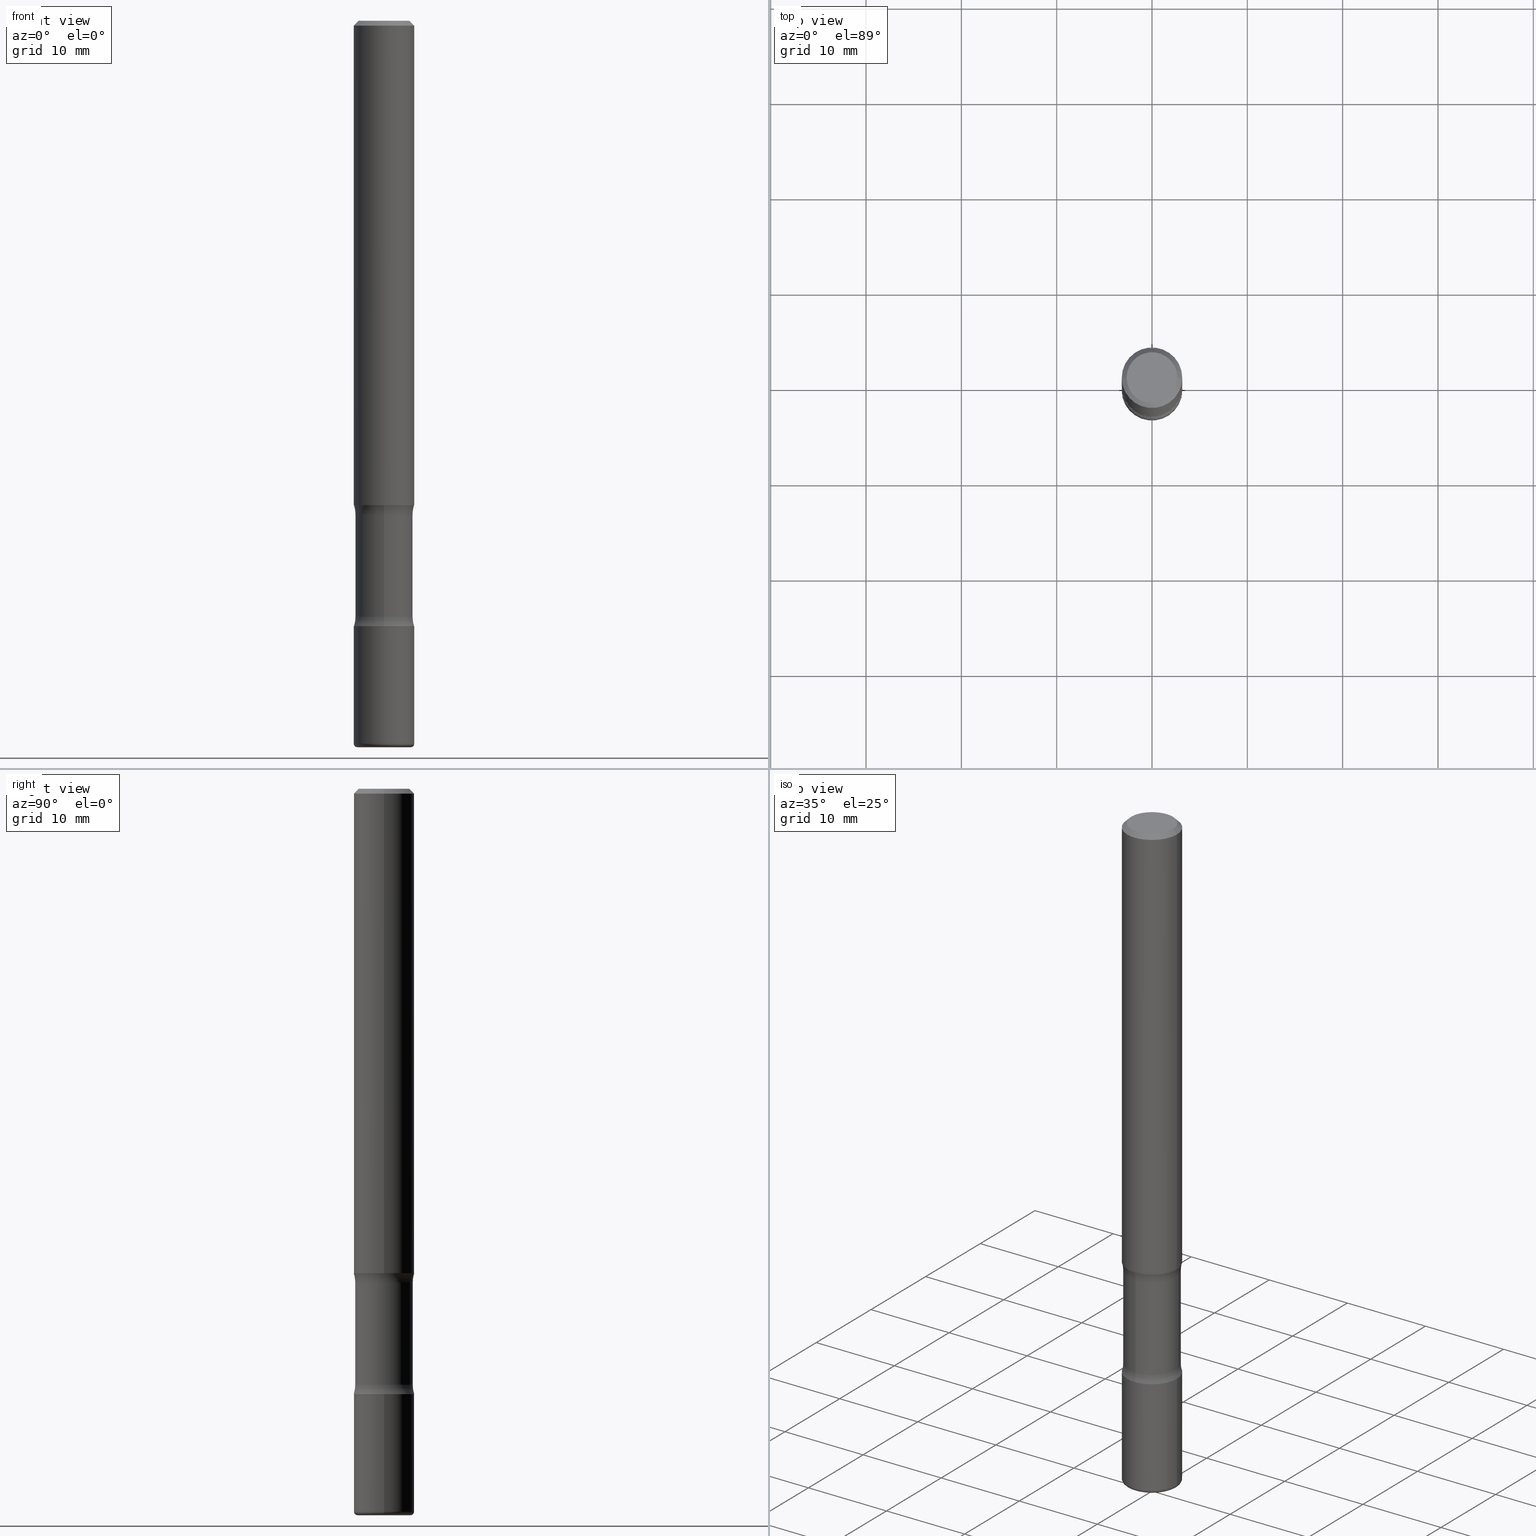
[diagram: canonical four-view strip — front | top / right | iso, engineering-drawing reading convention]
A machine part, canonical four-view strip (front | top / right | iso — engineering-drawing reading convention). The complete STEP part file that produces these views, byte-faithful:
ISO-10303-21;
HEADER;
FILE_DESCRIPTION (( 'STEP AP203' ),
    '1' );
FILE_NAME ('37790.STEP',
    '2024-03-02T00:19:03',
    ( '' ),
    ( '' ),
    'SwSTEP 2.0',
    'SolidWorks 2023',
    '' );
FILE_SCHEMA (( 'CONFIG_CONTROL_DESIGN' ));
ENDSEC;

DATA;
#1 = VECTOR ( 'NONE', #219, 39.37007874015748143 ) ;
#2 = AXIS2_PLACEMENT_3D ( 'NONE', #66, #208, #169 ) ;
#3 = AXIS2_PLACEMENT_3D ( 'NONE', #526, #298, #16 ) ;
#4 = DIRECTION ( 'NONE',  ( 1.000000000000000000, -6.982962677686266711E-15, 4.876176775795935232E-29 ) ) ;
#5 = CARTESIAN_POINT ( 'NONE',  ( -0.1250000000000000555, -8.687209152077199707E-15, -2.499999999999999556 ) ) ;
#6 = DIRECTION ( 'NONE',  ( -1.000000000000000000, 6.982962677686266711E-15, 0.000000000000000000 ) ) ;
#7 = CARTESIAN_POINT ( 'NONE',  ( 7.332110811570564466E-16, 0.1049999999999997879, -3.644712843334793412E-16 ) ) ;
#8 = CARTESIAN_POINT ( 'NONE',  ( 4.941179176714029352E-29, -7.183980100768040122E-15, -2.039031237489990378 ) ) ;
#9 = LINE ( 'NONE', #15, #41 ) ;
#10 = LOCAL_TIME ( 19, 19, 3.000000000000000000, #443 ) ;
#11 = CIRCLE ( 'NONE', #554, 0.1249999999999997918 ) ;
#12 = CARTESIAN_POINT ( 'NONE',  ( 0.1249999999999997918, -9.273918764983029686E-16, -0.02000000000000002470 ) ) ;
#13 = CARTESIAN_POINT ( 'NONE',  ( 4.890937612370273194E-29, -6.982962677686291165E-15, -2.000000000000000000 ) ) ;
#14 = AXIS2_PLACEMENT_3D ( 'NONE', #116, #291, #80 ) ;
#15 = CARTESIAN_POINT ( 'NONE',  ( -0.1249999999999997918, 8.030407079339189559E-16, -0.02000000000000002470 ) ) ;
#16 = DIRECTION ( 'NONE',  ( 6.982962677686266711E-15, 1.000000000000000000, -3.351036712181296563E-15 ) ) ;
#17 = EDGE_LOOP ( 'NONE', ( #230, #314 ) ) ;
#18 = EDGE_CURVE ( 'NONE', #244, #396, #170, .T. ) ;
#19 = FACE_OUTER_BOUND ( 'NONE', #146, .T. ) ;
#20 = CYLINDRICAL_SURFACE ( 'NONE', #223, 0.1249999999999999167 ) ;
#21 = EDGE_CURVE ( 'NONE', #152, #244, #511, .T. ) ;
#22 = DIRECTION ( 'NONE',  ( 2.543540764811263793E-29, -3.351036712181296563E-15, -1.000000000000000000 ) ) ;
#23 = ORIENTED_EDGE ( 'NONE', *, *, #248, .T. ) ;
#24 = DATE_AND_TIME ( #401, #10 ) ;
#25 = VERTEX_POINT ( 'NONE', #101 ) ;
#26 = EDGE_CURVE ( 'NONE', #359, #25, #31, .T. ) ;
#27 = DIRECTION ( 'NONE',  ( 1.000000000000000000, -6.982962677686265922E-15, 4.876206205277404118E-29 ) ) ;
#28 = DATE_TIME_ROLE ( 'classification_date' ) ;
#29 = PERSON_AND_ORGANIZATION ( #89, #258 ) ;
#30 = ORIENTED_EDGE ( 'NONE', *, *, #544, .F. ) ;
#31 = CIRCLE ( 'NONE', #476, 0.1250000000000000278 ) ;
#32 = AXIS2_PLACEMENT_3D ( 'NONE', #416, #153, #462 ) ;
#33 = CARTESIAN_POINT ( 'NONE',  ( 4.890937612370279289E-31, -6.982962677686299005E-17, -0.02000000000000002470 ) ) ;
#34 = EDGE_LOOP ( 'NONE', ( #284, #321, #449, #110 ) ) ;
#35 = CARTESIAN_POINT ( 'NONE',  ( 0.1100000000000001532, -1.119019769099227806E-14, -2.984999999999999432 ) ) ;
#36 = SHAPE_DEFINITION_REPRESENTATION ( #519, #126 ) ;
#37 = EDGE_LOOP ( 'NONE', ( #510, #174, #331, #186 ) ) ;
#38 = DIRECTION ( 'NONE',  ( 1.000000000000000000, -6.860497997771530774E-15, 4.842518830249131545E-29 ) ) ;
#39 = EDGE_CURVE ( 'NONE', #68, #518, #11, .T. ) ;
#40 = DIRECTION ( 'NONE',  ( -6.982962677686265133E-15, -1.000000000000000000, 0.000000000000000000 ) ) ;
#41 = VECTOR ( 'NONE', #137, 39.37007874015748143 ) ;
#42 = VECTOR ( 'NONE', #343, 39.37007874015748143 ) ;
#43 = AXIS2_PLACEMENT_3D ( 'NONE', #457, #556, #77 ) ;
#44 = ADVANCED_FACE ( 'NONE', ( #355 ), #317, .T. ) ;
#45 = EDGE_CURVE ( 'NONE', #359, #450, #59, .T. ) ;
#46 = CARTESIAN_POINT ( 'NONE',  ( 8.292268179753179304E-16, 0.1187499999999896000, -3.000000000000000444 ) ) ;
#47 = ORIENTED_EDGE ( 'NONE', *, *, #417, .T. ) ;
#48 = DIRECTION ( 'NONE',  ( 6.982962677686265133E-15, 1.000000000000000000, -2.300503573612011422E-15 ) ) ;
#49 = PLANE ( 'NONE',  #380 ) ;
#50 = CC_DESIGN_PERSON_AND_ORGANIZATION_ASSIGNMENT ( #273, #363, ( #242 ) ) ;
#51 = AXIS2_PLACEMENT_3D ( 'NONE', #33, #509, #113 ) ;
#52 = CARTESIAN_POINT ( 'NONE',  ( 7.385442397868472267E-29, -1.040422170319851125E-14, -2.999999999999999556 ) ) ;
#53 = DIRECTION ( 'NONE',  ( 1.000000000000000000, -6.982962677686266711E-15, 0.000000000000000000 ) ) ;
#54 = DIRECTION ( 'NONE',  ( 0.7071067811865471286, -7.319954787623254468E-15, -0.7071067811865479058 ) ) ;
#55 = FACE_OUTER_BOUND ( 'NONE', #346, .T. ) ;
#56 = ADVANCED_FACE ( 'NONE', ( #537 ), #464, .F. ) ;
#57 = CARTESIAN_POINT ( 'NONE',  ( 6.113672015462840371E-29, -8.728703347107863365E-15, -2.499999999999999556 ) ) ;
#58 = DIRECTION ( 'NONE',  ( 1.000000000000000000, -6.982962677686270655E-15, 0.000000000000000000 ) ) ;
#59 = CIRCLE ( 'NONE', #301, 0.1187499999999999944 ) ;
#60 = DIRECTION ( 'NONE',  ( 2.543540764811263793E-29, -3.351036712181296563E-15, -1.000000000000000000 ) ) ;
#61 = AXIS2_PLACEMENT_3D ( 'NONE', #558, #200, #372 ) ;
#62 = CARTESIAN_POINT ( 'NONE',  ( 0.1250000000000003331, -1.129494213115757459E-14, -2.984999999999999432 ) ) ;
#63 = CARTESIAN_POINT ( 'NONE',  ( -1.043851414335219820E-46, 1.490343170380447200E-32, 4.268512490100411279E-18 ) ) ;
#64 = FACE_OUTER_BOUND ( 'NONE', #17, .T. ) ;
#65 = EDGE_LOOP ( 'NONE', ( #196, #341 ) ) ;
#66 = CARTESIAN_POINT ( 'NONE',  ( 0.000000000000000000, 0.000000000000000000, 0.000000000000000000 ) ) ;
#67 = ADVANCED_FACE ( 'NONE', ( #64 ), #325, .T. ) ;
#68 = VERTEX_POINT ( 'NONE', #333 ) ;
#69 = PERSON_AND_ORGANIZATION ( #89, #258 ) ;
#70 = ORIENTED_EDGE ( 'NONE', *, *, #337, .F. ) ;
#71 = APPROVAL_DATE_TIME ( #283, #282 ) ;
#72 = ORIENTED_EDGE ( 'NONE', *, *, #21, .T. ) ;
#73 = AXIS2_PLACEMENT_3D ( 'NONE', #259, #184, #48 ) ;
#74 = CIRCLE ( 'NONE', #61, 0.1250000000000000555 ) ;
#75 = ADVANCED_FACE ( 'NONE', ( #292 ), #164, .F. ) ;
#76 = ORIENTED_EDGE ( 'NONE', *, *, #118, .F. ) ;
#77 = DIRECTION ( 'NONE',  ( 1.000000000000000000, -6.982962677686263555E-15, 4.883557194083111780E-29 ) ) ;
#78 = ADVANCED_FACE ( 'NONE', ( #226 ), #20, .T. ) ;
#79 = CARTESIAN_POINT ( 'NONE',  ( -0.1100000000000001532, -9.613370191969994157E-15, -3.000000000000000444 ) ) ;
#80 = DIRECTION ( 'NONE',  ( 1.000000000000000000, -6.982962677686269077E-15, 0.000000000000000000 ) ) ;
#81 = FACE_OUTER_BOUND ( 'NONE', #539, .T. ) ;
#82 = AXIS2_PLACEMENT_3D ( 'NONE', #391, #387, #6 ) ;
#83 = ORIENTED_EDGE ( 'NONE', *, *, #320, .T. ) ;
#84 = DIRECTION ( 'NONE',  ( 2.543540764811263793E-29, -3.351036712181296563E-15, -1.000000000000000000 ) ) ;
#85 = FACE_OUTER_BOUND ( 'NONE', #37, .T. ) ;
#86 = ADVANCED_FACE ( 'NONE', ( #490 ), #183, .T. ) ;
#87 = ORIENTED_EDGE ( 'NONE', *, *, #513, .T. ) ;
#88 = LINE ( 'NONE', #531, #1 ) ;
#89 = PERSON ( 'UNSPECIFIED', 'UNSPECIFIED', 'UNSPECIFIED', ('UNSPECIFIED'), ('UNSPECIFIED'), ('UNSPECIFIED') ) ;
#90 = DIRECTION ( 'NONE',  ( 6.860497997771529985E-15, 1.000000000000000000, 0.000000000000000000 ) ) ;
#91 = CARTESIAN_POINT ( 'NONE',  ( -0.1250000000000001110, 8.881784197001260212E-16, -6.148668862818637832E-30 ) ) ;
#92 = CARTESIAN_POINT ( 'NONE',  ( 4.938696304666674034E-29, -7.187535714856152812E-15, -2.039031237489990378 ) ) ;
#93 = CARTESIAN_POINT ( 'NONE',  ( -8.146841372352953582E-16, -0.1187500000000103889, -2.999999999999999112 ) ) ;
#94 = PLANE ( 'NONE',  #178 ) ;
#95 = VECTOR ( 'NONE', #270, 39.37007874015748143 ) ;
#96 = PERSON_AND_ORGANIZATION ( #89, #258 ) ;
#97 = ADVANCED_FACE ( 'NONE', ( #55 ), #138, .F. ) ;
#98 = CARTESIAN_POINT ( 'NONE',  ( -8.361231934783443908E-16, -0.1187500000000085848, -2.460968762510009622 ) ) ;
#99 = DIRECTION ( 'NONE',  ( 6.982962677686265133E-15, 1.000000000000000000, -2.300503573612011422E-15 ) ) ;
#100 = EDGE_LOOP ( 'NONE', ( #109, #424, #295, #70 ) ) ;
#101 = CARTESIAN_POINT ( 'NONE',  ( -8.575622497213937192E-16, -0.1250000000000071609, -1.999999999999999334 ) ) ;
#102 = APPROVAL_DATE_TIME ( #318, #530 ) ;
#103 = VERTEX_POINT ( 'NONE', #98 ) ;
#104 = ORIENTED_EDGE ( 'NONE', *, *, #524, .T. ) ;
#105 = VERTEX_POINT ( 'NONE', #218 ) ;
#106 = AXIS2_PLACEMENT_3D ( 'NONE', #294, #344, #286 ) ;
#107 = DIRECTION ( 'NONE',  ( -2.445468806185136597E-29, 3.491481338843145583E-15, 1.000000000000000000 ) ) ;
#108 = LINE ( 'NONE', #279, #165 ) ;
#109 = ORIENTED_EDGE ( 'NONE', *, *, #45, .F. ) ;
#110 = ORIENTED_EDGE ( 'NONE', *, *, #179, .F. ) ;
#111 = EDGE_CURVE ( 'NONE', #244, #543, #516, .T. ) ;
#112 = CALENDAR_DATE ( 2024, 1, 3 ) ;
#113 = DIRECTION ( 'NONE',  ( -1.000000000000000000, 6.982962677686266711E-15, 0.000000000000000000 ) ) ;
#114 = ORIENTED_EDGE ( 'NONE', *, *, #478, .T. ) ;
#115 = DIRECTION ( 'NONE',  ( 1.000000000000000000, -6.982962677686217012E-15, 0.000000000000000000 ) ) ;
#116 = CARTESIAN_POINT ( 'NONE',  ( 4.890937612370273194E-29, -6.982962677686291165E-15, -2.000000000000000000 ) ) ;
#117 = CARTESIAN_POINT ( 'NONE',  ( 1.374422904781070061E-28, 2.198688627549184381E-15, -2.500000000000000000 ) ) ;
#118 = EDGE_CURVE ( 'NONE', #188, #381, #240, .T. ) ;
#119 = AXIS2_PLACEMENT_3D ( 'NONE', #247, #412, #250 ) ;
#120 = APPROVAL_PERSON_ORGANIZATION ( #69, #463, #542 ) ;
#121 = AXIS2_PLACEMENT_3D ( 'NONE', #307, #441, #262 ) ;
#122 = CARTESIAN_POINT ( 'NONE',  ( -0.1250000000000000278, -2.638217732531448450E-15, -2.000000000000000000 ) ) ;
#123 = CIRCLE ( 'NONE', #414, 0.1250000000000001388 ) ;
#124 = FACE_OUTER_BOUND ( 'NONE', #546, .T. ) ;
#125 = VERTEX_POINT ( 'NONE', #310 ) ;
#126 = ADVANCED_BREP_SHAPE_REPRESENTATION ( '37790', ( #316, #299, #132, #2 ), #249 ) ;
#127 = MECHANICAL_CONTEXT ( 'NONE', #507, 'mechanical' ) ;
#128 = CARTESIAN_POINT ( 'NONE',  ( -1.672246386956761357E-15, -0.2437500000000072109, -2.039031237489989490 ) ) ;
#129 = ADVANCED_FACE ( 'NONE', ( #481 ), #94, .F. ) ;
#130 = ORIENTED_EDGE ( 'NONE', *, *, #376, .F. ) ;
#131 = DIRECTION ( 'NONE',  ( 2.543540764811263793E-29, -3.351036712181296563E-15, -1.000000000000000000 ) ) ;
#132 = MANIFOLD_SOLID_BREP ( 'Body-Move/Copy2[4]', #187 ) ;
#133 = AXIS2_PLACEMENT_3D ( 'NONE', #334, #352, #456 ) ;
#134 = FACE_OUTER_BOUND ( 'NONE', #276, .T. ) ;
#135 = CARTESIAN_POINT ( 'NONE',  ( 6.014394471806022296E-29, -8.597908237357040299E-15, -2.460968762510010066 ) ) ;
#136 = EDGE_CURVE ( 'NONE', #322, #404, #517, .T. ) ;
#137 = DIRECTION ( 'NONE',  ( -0.7071067811865471286, 2.468850131082252722E-15, -0.7071067811865479058 ) ) ;
#138 = PLANE ( 'NONE',  #121 ) ;
#139 = CIRCLE ( 'NONE', #264, 0.1049999999999997879 ) ;
#140 = EDGE_LOOP ( 'NONE', ( #496, #440, #275, #560 ) ) ;
#141 = ORIENTED_EDGE ( 'NONE', *, *, #524, .F. ) ;
#142 = CC_DESIGN_APPROVAL ( #463, ( #532 ) ) ;
#143 = CIRCLE ( 'NONE', #168, 0.1250000000000000278 ) ;
#144 = DIRECTION ( 'NONE',  ( 6.982962677686266711E-15, 1.000000000000000000, -3.351036712181296563E-15 ) ) ;
#145 = ORIENTED_EDGE ( 'NONE', *, *, #248, .F. ) ;
#146 = EDGE_LOOP ( 'NONE', ( #207, #444, #87, #166 ) ) ;
#147 = DATE_AND_TIME ( #540, #222 ) ;
#148 = EDGE_CURVE ( 'NONE', #105, #543, #315, .T. ) ;
#149 = ORIENTED_EDGE ( 'NONE', *, *, #18, .T. ) ;
#150 = AXIS2_PLACEMENT_3D ( 'NONE', #52, #216, #384 ) ;
#151 = AXIS2_PLACEMENT_3D ( 'NONE', #210, #382, #4 ) ;
#152 = VERTEX_POINT ( 'NONE', #79 ) ;
#153 = DIRECTION ( 'NONE',  ( -2.445468806185136597E-29, 3.491481338843145583E-15, 1.000000000000000000 ) ) ;
#154 = ORIENTED_EDGE ( 'NONE', *, *, #26, .F. ) ;
#155 = FACE_OUTER_BOUND ( 'NONE', #369, .T. ) ;
#156 = ORIENTED_EDGE ( 'NONE', *, *, #528, .T. ) ;
#157 = CIRCLE ( 'NONE', #192, 0.1187499999999999806 ) ;
#158 = AXIS2_PLACEMENT_3D ( 'NONE', #228, #523, #520 ) ;
#159 = DIRECTION ( 'NONE',  ( -6.982962677686265922E-15, -1.000000000000000000, 0.000000000000000000 ) ) ;
#160 = CARTESIAN_POINT ( 'NONE',  ( 7.336406418555409790E-29, -1.047444401652943635E-14, -3.000000000000000444 ) ) ;
#161 = APPLICATION_CONTEXT ( 'configuration controlled 3d designs of mechanical parts and assemblies' ) ;
#162 = CC_DESIGN_DATE_AND_TIME_ASSIGNMENT ( #323, #28, ( #339 ) ) ;
#163 = CARTESIAN_POINT ( 'NONE',  ( 7.299724386462631351E-29, -1.042207179644678651E-14, -2.984999999999999432 ) ) ;
#164 = PLANE ( 'NONE',  #373 ) ;
#165 = VECTOR ( 'NONE', #330, 39.37007874015748143 ) ;
#166 = ORIENTED_EDGE ( 'NONE', *, *, #459, .F. ) ;
#167 = CC_DESIGN_APPROVAL ( #530, ( #242 ) ) ;
#168 = AXIS2_PLACEMENT_3D ( 'NONE', #375, #504, #40 ) ;
#169 = DIRECTION ( 'NONE',  ( 1.000000000000000000, 0.000000000000000000, 0.000000000000000000 ) ) ;
#170 = LINE ( 'NONE', #91, #42 ) ;
#171 = DIRECTION ( 'NONE',  ( 1.000000000000000000, -6.982962677686266711E-15, 4.876176775795935232E-29 ) ) ;
#172 = DIRECTION ( 'NONE',  ( 1.000000000000000000, -6.982962677686270655E-15, 0.000000000000000000 ) ) ;
#173 = CC_DESIGN_PERSON_AND_ORGANIZATION_ASSIGNMENT ( #29, #304, ( #532 ) ) ;
#174 = ORIENTED_EDGE ( 'NONE', *, *, #111, .T. ) ;
#175 =( NAMED_UNIT ( * ) SI_UNIT ( $, .STERADIAN. ) SOLID_ANGLE_UNIT ( ) );
#176 = ORIENTED_EDGE ( 'NONE', *, *, #559, .T. ) ;
#177 = DIRECTION ( 'NONE',  ( -2.445468806185136597E-29, 3.491481338843145583E-15, 1.000000000000000000 ) ) ;
#178 = AXIS2_PLACEMENT_3D ( 'NONE', #263, #436, #390 ) ;
#179 = EDGE_CURVE ( 'NONE', #188, #518, #88, .T. ) ;
#180 = DIRECTION ( 'NONE',  ( -2.445468806185136597E-29, 3.491481338843145583E-15, 1.000000000000000000 ) ) ;
#181 = FACE_OUTER_BOUND ( 'NONE', #140, .T. ) ;
#182 = CARTESIAN_POINT ( 'NONE',  ( -8.575622497213801114E-16, -0.1250000000000087153, -2.499999999999999112 ) ) ;
#183 = CYLINDRICAL_SURFACE ( 'NONE', #193, 0.1187499999999999944 ) ;
#184 = DIRECTION ( 'NONE',  ( 2.543540764811263793E-29, -3.351036712181296563E-15, -1.000000000000000000 ) ) ;
#185 = DIRECTION ( 'NONE',  ( -2.445468806185136597E-29, 3.491481338843145583E-15, 1.000000000000000000 ) ) ;
#186 = ORIENTED_EDGE ( 'NONE', *, *, #328, .F. ) ;
#187 = CLOSED_SHELL ( 'NONE', ( #86, #534, #385, #56, #75, #271, #212, #44 ) ) ;
#188 = VERTEX_POINT ( 'NONE', #308 ) ;
#189 = APPROVAL_STATUS ( 'not_yet_approved' ) ;
#190 = FACE_OUTER_BOUND ( 'NONE', #442, .T. ) ;
#191 = VECTOR ( 'NONE', #482, 39.37007874015748143 ) ;
#192 = AXIS2_PLACEMENT_3D ( 'NONE', #135, #306, #302 ) ;
#193 = AXIS2_PLACEMENT_3D ( 'NONE', #303, #60, #533 ) ;
#194 = AXIS2_PLACEMENT_3D ( 'NONE', #368, #547, #288 ) ;
#195 = PLANE ( 'NONE',  #211 ) ;
#196 = ORIENTED_EDGE ( 'NONE', *, *, #361, .F. ) ;
#197 = CC_DESIGN_DATE_AND_TIME_ASSIGNMENT ( #24, #360, ( #242 ) ) ;
#198 = ORIENTED_EDGE ( 'NONE', *, *, #39, .F. ) ;
#199 = DIRECTION ( 'NONE',  ( -6.982962677686266711E-15, -1.000000000000000000, 3.491481338843145583E-15 ) ) ;
#200 = DIRECTION ( 'NONE',  ( 2.543540764811263793E-29, -3.351036712181296563E-15, -1.000000000000000000 ) ) ;
#201 = DIRECTION ( 'NONE',  ( 6.982962677686265922E-15, 1.000000000000000000, -4.370956789862816416E-15 ) ) ;
#202 = CIRCLE ( 'NONE', #106, 0.1250000000000000555 ) ;
#203 = DIRECTION ( 'NONE',  ( -6.982962677686265922E-15, -1.000000000000000000, 3.351036712181296563E-15 ) ) ;
#204 = LINE ( 'NONE', #46, #452 ) ;
#205 = DIRECTION ( 'NONE',  ( 2.543540764811263793E-29, -3.351036712181296563E-15, -1.000000000000000000 ) ) ;
#206 = ADVANCED_FACE ( 'NONE', ( #134 ), #514, .T. ) ;
#207 = ORIENTED_EDGE ( 'NONE', *, *, #427, .F. ) ;
#208 = DIRECTION ( 'NONE',  ( 0.000000000000000000, 0.000000000000000000, 1.000000000000000000 ) ) ;
#209 = ORIENTED_EDGE ( 'NONE', *, *, #371, .F. ) ;
#210 = CARTESIAN_POINT ( 'NONE',  ( 0.000000000000000000, 0.000000000000000000, 0.000000000000000000 ) ) ;
#211 = AXIS2_PLACEMENT_3D ( 'NONE', #117, #460, #203 ) ;
#212 = ADVANCED_FACE ( 'NONE', ( #181 ), #338, .F. ) ;
#213 = CLOSED_SHELL ( 'NONE', ( #78, #290, #206, #260, #129, #350 ) ) ;
#214 = LINE ( 'NONE', #383, #95 ) ;
#215 = CIRCLE ( 'NONE', #340, 0.1250000000000001388 ) ;
#216 = DIRECTION ( 'NONE',  ( 2.543540764811263793E-29, -3.351036712181296563E-15, -1.000000000000000000 ) ) ;
#217 = ORIENTED_EDGE ( 'NONE', *, *, #544, .T. ) ;
#218 = CARTESIAN_POINT ( 'NONE',  ( 0.1100000000000001532, -1.124256991107492790E-14, -3.000000000000000444 ) ) ;
#219 = DIRECTION ( 'NONE',  ( -2.445468806185136877E-29, 3.491481338843145188E-15, 1.000000000000000000 ) ) ;
#220 =( CONVERSION_BASED_UNIT ( 'INCH', #351 ) LENGTH_UNIT ( ) NAMED_UNIT ( #362 ) );
#221 = DIRECTION ( 'NONE',  ( 1.000000000000000000, -6.982962677686266711E-15, 4.876176775795935793E-29 ) ) ;
#222 = LOCAL_TIME ( 19, 19, 3.000000000000000000, #238 ) ;
#223 = AXIS2_PLACEMENT_3D ( 'NONE', #231, #432, #221 ) ;
#224 = CIRCLE ( 'NONE', #73, 0.1187499999999999944 ) ;
#225 = CARTESIAN_POINT ( 'NONE',  ( 4.890937612370279289E-31, -6.982962677686299005E-17, -0.02000000000000002470 ) ) ;
#226 = FACE_OUTER_BOUND ( 'NONE', #34, .T. ) ;
#227 = DIRECTION ( 'NONE',  ( -2.445468806185136597E-29, 3.491481338843145583E-15, 1.000000000000000000 ) ) ;
#228 = CARTESIAN_POINT ( 'NONE',  ( -0.1100000000000001532, -9.640474787110675615E-15, -2.984999999999999432 ) ) ;
#229 = PERSON_AND_ORGANIZATION ( #89, #258 ) ;
#230 = ORIENTED_EDGE ( 'NONE', *, *, #320, .F. ) ;
#231 = CARTESIAN_POINT ( 'NONE',  ( 0.000000000000000000, 0.000000000000000000, 0.000000000000000000 ) ) ;
#232 = EDGE_CURVE ( 'NONE', #359, #103, #305, .T. ) ;
#233 = VECTOR ( 'NONE', #54, 39.37007874015748143 ) ;
#234 = ORIENTED_EDGE ( 'NONE', *, *, #427, .T. ) ;
#235 = APPROVAL_STATUS ( 'not_yet_approved' ) ;
#236 = ORIENTED_EDGE ( 'NONE', *, *, #39, .T. ) ;
#237 = EDGE_CURVE ( 'NONE', #543, #244, #123, .T. ) ;
#238 = COORDINATED_UNIVERSAL_TIME_OFFSET ( 5, 0, .BEHIND. ) ;
#239 = EDGE_LOOP ( 'NONE', ( #399, #327, #47, #467 ) ) ;
#240 = CIRCLE ( 'NONE', #405, 0.1250000000000000278 ) ;
#241 = AXIS2_PLACEMENT_3D ( 'NONE', #57, #227, #393 ) ;
#242 = PRODUCT_DEFINITION ( 'UNKNOWN', '', #532, #529 ) ;
#243 = COORDINATED_UNIVERSAL_TIME_OFFSET ( 5, 0, .BEHIND. ) ;
#244 = VERTEX_POINT ( 'NONE', #541 ) ;
#245 = DIRECTION ( 'NONE',  ( -1.000000000000000000, 6.982962677686265922E-15, -4.883557194083112340E-29 ) ) ;
#246 = CARTESIAN_POINT ( 'NONE',  ( 4.841901633057209595E-29, -7.053184991017215478E-15, -2.000000000000000000 ) ) ;
#247 = CARTESIAN_POINT ( 'NONE',  ( 6.014394471806022296E-29, -8.597908237357040299E-15, -2.460968762510010066 ) ) ;
#248 = EDGE_CURVE ( 'NONE', #404, #322, #139, .T. ) ;
#249 =( GEOMETRIC_REPRESENTATION_CONTEXT ( 3 ) GLOBAL_UNCERTAINTY_ASSIGNED_CONTEXT ( ( #487 ) ) GLOBAL_UNIT_ASSIGNED_CONTEXT ( ( #220, #309, #175 ) ) REPRESENTATION_CONTEXT ( 'NONE', 'WORKASPACE' ) );
#250 = DIRECTION ( 'NONE',  ( 6.982962677686265133E-15, 1.000000000000000000, -4.601007147224022844E-15 ) ) ;
#251 = AXIS2_PLACEMENT_3D ( 'NONE', #377, #425, #171 ) ;
#252 = VERTEX_POINT ( 'NONE', #550 ) ;
#253 = CARTESIAN_POINT ( 'NONE',  ( 0.1250000000000000555, -9.601573681818646704E-15, -2.499999999999999556 ) ) ;
#254 = CYLINDRICAL_SURFACE ( 'NONE', #151, 0.1250000000000001110 ) ;
#255 = EDGE_LOOP ( 'NONE', ( #453, #497, #421, #392 ) ) ;
#256 = CARTESIAN_POINT ( 'NONE',  ( 0.000000000000000000, 0.000000000000000000, 0.000000000000000000 ) ) ;
#257 = CARTESIAN_POINT ( 'NONE',  ( 4.890937612370279289E-31, -6.982962677686299005E-17, -0.02000000000000002470 ) ) ;
#258 = ORGANIZATION ( 'UNSPECIFIED', 'UNSPECIFIED', '' ) ;
#259 = CARTESIAN_POINT ( 'NONE',  ( 4.941179176714029352E-29, -7.183980100768040122E-15, -2.039031237489990378 ) ) ;
#260 = ADVANCED_FACE ( 'NONE', ( #419 ), #49, .F. ) ;
#261 = CARTESIAN_POINT ( 'NONE',  ( 4.841901633057209595E-29, -7.053184991017215478E-15, -2.000000000000000000 ) ) ;
#262 = DIRECTION ( 'NONE',  ( -1.000000000000000000, 6.982962677686265922E-15, -4.876176775795935793E-29 ) ) ;
#263 = CARTESIAN_POINT ( 'NONE',  ( 4.890937612370273194E-29, -6.982962677686291165E-15, -2.000000000000000000 ) ) ;
#264 = AXIS2_PLACEMENT_3D ( 'NONE', #63, #536, #408 ) ;
#265 = AXIS2_PLACEMENT_3D ( 'NONE', #269, #177, #58 ) ;
#266 = CIRCLE ( 'NONE', #194, 0.1100000000000001532 ) ;
#267 = CARTESIAN_POINT ( 'NONE',  ( 0.1249999999999997918, -9.273918764983029686E-16, -0.02000000000000002470 ) ) ;
#268 = EDGE_CURVE ( 'NONE', #25, #252, #293, .T. ) ;
#269 = CARTESIAN_POINT ( 'NONE',  ( 7.299724386462631351E-29, -1.042207179644678651E-14, -2.984999999999999432 ) ) ;
#270 = DIRECTION ( 'NONE',  ( -2.445468806185136877E-29, 3.491481338843145188E-15, 1.000000000000000000 ) ) ;
#271 = ADVANCED_FACE ( 'NONE', ( #155 ), #195, .F. ) ;
#272 = ORIENTED_EDGE ( 'NONE', *, *, #328, .T. ) ;
#273 = PERSON_AND_ORGANIZATION ( #89, #258 ) ;
#274 = EDGE_LOOP ( 'NONE', ( #154, #209, #500, #447 ) ) ;
#275 = ORIENTED_EDGE ( 'NONE', *, *, #459, .T. ) ;
#276 = EDGE_LOOP ( 'NONE', ( #549, #145, #104, #236 ) ) ;
#277 = AXIS2_PLACEMENT_3D ( 'NONE', #438, #107, #27 ) ;
#278 = EDGE_CURVE ( 'NONE', #543, #370, #108, .T. ) ;
#279 = CARTESIAN_POINT ( 'NONE',  ( 0.1250000000000001110, -8.728703347107841277E-16, 6.095220969744924646E-30 ) ) ;
#280 = APPLICATION_PROTOCOL_DEFINITION ( 'international standard', 'config_control_design', 1994, #161 ) ;
#281 = ORIENTED_EDGE ( 'NONE', *, *, #148, .T. ) ;
#282 = APPROVAL ( #495, 'UNSPECIFIED' ) ;
#283 = DATE_AND_TIME ( #508, #332 ) ;
#284 = ORIENTED_EDGE ( 'NONE', *, *, #118, .T. ) ;
#285 = AXIS2_PLACEMENT_3D ( 'NONE', #225, #480, #349 ) ;
#286 = DIRECTION ( 'NONE',  ( 6.982962677686265922E-15, 1.000000000000000000, -4.370956789862819572E-15 ) ) ;
#287 = CIRCLE ( 'NONE', #14, 0.1250000000000000278 ) ;
#288 = DIRECTION ( 'NONE',  ( 1.000000000000000000, -6.982962677686269866E-15, 0.000000000000000000 ) ) ;
#289 = ORIENTED_EDGE ( 'NONE', *, *, #179, .T. ) ;
#290 = ADVANCED_FACE ( 'NONE', ( #81 ), #367, .T. ) ;
#291 = DIRECTION ( 'NONE',  ( -2.445468806185136597E-29, 3.491481338843145583E-15, 1.000000000000000000 ) ) ;
#292 = FACE_OUTER_BOUND ( 'NONE', #65, .T. ) ;
#293 = CIRCLE ( 'NONE', #437, 0.1250000000000001388 ) ;
#294 = CARTESIAN_POINT ( 'NONE',  ( 6.113672015462840371E-29, -8.728703347107863365E-15, -2.499999999999999556 ) ) ;
#295 = ORIENTED_EDGE ( 'NONE', *, *, #268, .T. ) ;
#296 = DIRECTION ( 'NONE',  ( 1.000000000000000000, -6.860497997771530774E-15, 4.842518830249131545E-29 ) ) ;
#297 = CARTESIAN_POINT ( 'NONE',  ( 6.018222341714267541E-29, -8.592426509779609334E-15, -2.460968762510010066 ) ) ;
#298 = DIRECTION ( 'NONE',  ( 2.543540764811263793E-29, -3.351036712181296563E-15, -1.000000000000000000 ) ) ;
#299 = MANIFOLD_SOLID_BREP ( 'Body-Move/Copy2[2]', #213 ) ;
#300 = LOCAL_TIME ( 19, 19, 3.000000000000000000, #366 ) ;
#301 = AXIS2_PLACEMENT_3D ( 'NONE', #8, #489, #99 ) ;
#302 = DIRECTION ( 'NONE',  ( 6.982962677686265133E-15, 1.000000000000000000, -4.601007147224022844E-15 ) ) ;
#303 = CARTESIAN_POINT ( 'NONE',  ( 7.385442397868472267E-29, -1.040422170319851125E-14, -2.999999999999999556 ) ) ;
#304 = PERSON_AND_ORGANIZATION_ROLE ( 'creator' ) ;
#305 = LINE ( 'NONE', #93, #191 ) ;
#306 = DIRECTION ( 'NONE',  ( 2.543540764811263793E-29, -3.351036712181296563E-15, -1.000000000000000000 ) ) ;
#307 = CARTESIAN_POINT ( 'NONE',  ( 1.374422904781070061E-28, 2.198688627549184381E-15, -2.500000000000000000 ) ) ;
#308 = CARTESIAN_POINT ( 'NONE',  ( 0.1250000000000000278, -7.855833012397075293E-15, -2.000000000000000000 ) ) ;
#309 =( NAMED_UNIT ( * ) PLANE_ANGLE_UNIT ( ) SI_UNIT ( $, .RADIAN. ) );
#310 = CARTESIAN_POINT ( 'NONE',  ( 8.728703347108444755E-16, 0.1249999999999912570, -2.500000000000000000 ) ) ;
#311 = TOROIDAL_SURFACE ( 'NONE', #488, 0.2437500000000000222, 0.1250000000000000278 ) ;
#312 = EDGE_LOOP ( 'NONE', ( #76, #502 ) ) ;
#313 = PERSON_AND_ORGANIZATION_ROLE ( 'design_owner' ) ;
#314 = ORIENTED_EDGE ( 'NONE', *, *, #501, .F. ) ;
#315 = CIRCLE ( 'NONE', #445, 0.01500000000000038629 ) ;
#316 = MANIFOLD_SOLID_BREP ( 'Body-Move/Copy2[1]', #454 ) ;
#317 = CYLINDRICAL_SURFACE ( 'NONE', #150, 0.1187499999999999944 ) ;
#318 = DATE_AND_TIME ( #356, #300 ) ;
#319 = ORIENTED_EDGE ( 'NONE', *, *, #136, .F. ) ;
#320 = EDGE_CURVE ( 'NONE', #105, #152, #266, .T. ) ;
#321 = ORIENTED_EDGE ( 'NONE', *, *, #376, .T. ) ;
#322 = VERTEX_POINT ( 'NONE', #335 ) ;
#323 = DATE_AND_TIME ( #112, #552 ) ;
#324 = CIRCLE ( 'NONE', #119, 0.1187499999999999806 ) ;
#325 = PLANE ( 'NONE',  #133 ) ;
#326 = CC_DESIGN_PERSON_AND_ORGANIZATION_ASSIGNMENT ( #96, #553, ( #339 ) ) ;
#327 = ORIENTED_EDGE ( 'NONE', *, *, #45, .T. ) ;
#328 = EDGE_CURVE ( 'NONE', #396, #370, #389, .T. ) ;
#329 = PERSON_AND_ORGANIZATION ( #89, #258 ) ;
#330 = DIRECTION ( 'NONE',  ( -2.445468806185136877E-29, 3.491481338843145188E-15, 1.000000000000000000 ) ) ;
#331 = ORIENTED_EDGE ( 'NONE', *, *, #278, .T. ) ;
#332 = LOCAL_TIME ( 19, 19, 3.000000000000000000, #243 ) ;
#333 = CARTESIAN_POINT ( 'NONE',  ( -0.1249999999999997918, 8.030407079339189559E-16, -0.02000000000000002470 ) ) ;
#334 = CARTESIAN_POINT ( 'NONE',  ( -3.068898625555304027E-29, -2.537543307287994980E-14, -2.999999999999999556 ) ) ;
#335 = CARTESIAN_POINT ( 'NONE',  ( 0.1049999999999997879, -8.238720831321562839E-16, 4.268512490105855498E-18 ) ) ;
#336 = DIRECTION ( 'NONE',  ( -2.445468806185136597E-29, 3.491481338843145583E-15, 1.000000000000000000 ) ) ;
#337 = EDGE_CURVE ( 'NONE', #450, #252, #143, .T. ) ;
#338 = TOROIDAL_SURFACE ( 'NONE', #3, 0.2437500000000000500, 0.1249999999999999584 ) ;
#339 = SECURITY_CLASSIFICATION ( '', '', #397 ) ;
#340 = AXIS2_PLACEMENT_3D ( 'NONE', #261, #84, #557 ) ;
#341 = ORIENTED_EDGE ( 'NONE', *, *, #268, .F. ) ;
#342 = DIRECTION ( 'NONE',  ( 6.982962677686266711E-15, 1.000000000000000000, -3.351036712181296563E-15 ) ) ;
#343 = DIRECTION ( 'NONE',  ( -2.445468806185136877E-29, 3.491481338843145188E-15, 1.000000000000000000 ) ) ;
#344 = DIRECTION ( 'NONE',  ( 2.543540764811263793E-29, -3.351036712181296563E-15, -1.000000000000000000 ) ) ;
#345 = CARTESIAN_POINT ( 'NONE',  ( 7.299724386462631351E-29, -1.042207179644678651E-14, -2.984999999999999432 ) ) ;
#346 = EDGE_LOOP ( 'NONE', ( #217, #272 ) ) ;
#347 = CIRCLE ( 'NONE', #455, 0.1249999999999999584 ) ;
#348 =( LENGTH_UNIT ( ) NAMED_UNIT ( * ) SI_UNIT ( $, .METRE. ) );
#349 = DIRECTION ( 'NONE',  ( 1.000000000000000000, -6.982962677686266711E-15, 0.000000000000000000 ) ) ;
#350 = ADVANCED_FACE ( 'NONE', ( #190 ), #365, .T. ) ;
#351 = LENGTH_MEASURE_WITH_UNIT ( LENGTH_MEASURE( 0.02539999999999999897 ), #348 );
#352 = DIRECTION ( 'NONE',  ( 2.438088387897960049E-29, -3.491481338843145188E-15, -1.000000000000000000 ) ) ;
#353 = APPROVAL_PERSON_ORGANIZATION ( #229, #530, #395 ) ;
#354 = PERSON_AND_ORGANIZATION_ROLE ( 'design_supplier' ) ;
#355 = FACE_OUTER_BOUND ( 'NONE', #239, .T. ) ;
#356 = CALENDAR_DATE ( 2024, 1, 3 ) ;
#357 = ORIENTED_EDGE ( 'NONE', *, *, #278, .F. ) ;
#358 = CIRCLE ( 'NONE', #545, 0.1100000000000001532 ) ;
#359 = VERTEX_POINT ( 'NONE', #473 ) ;
#360 = DATE_TIME_ROLE ( 'creation_date' ) ;
#361 = EDGE_CURVE ( 'NONE', #252, #25, #215, .T. ) ;
#362 = DIMENSIONAL_EXPONENTS ( 1.000000000000000000, 0.000000000000000000, 0.000000000000000000, 0.000000000000000000, 0.000000000000000000, 0.000000000000000000, 0.000000000000000000 ) ;
#363 = PERSON_AND_ORGANIZATION_ROLE ( 'creator' ) ;
#364 = CC_DESIGN_SECURITY_CLASSIFICATION ( #339, ( #532 ) ) ;
#365 = CYLINDRICAL_SURFACE ( 'NONE', #465, 0.1249999999999999167 ) ;
#366 = COORDINATED_UNIVERSAL_TIME_OFFSET ( 5, 0, .BEHIND. ) ;
#367 = CONICAL_SURFACE ( 'NONE', #51, 0.1249999999999997918, 0.7853981633974477239 ) ;
#368 = CARTESIAN_POINT ( 'NONE',  ( 7.336406418555409790E-29, -1.047444401652943635E-14, -3.000000000000000444 ) ) ;
#369 = EDGE_LOOP ( 'NONE', ( #378, #234 ) ) ;
#370 = VERTEX_POINT ( 'NONE', #253 ) ;
#371 = EDGE_CURVE ( 'NONE', #450, #359, #224, .T. ) ;
#372 = DIRECTION ( 'NONE',  ( 6.982962677686265922E-15, 1.000000000000000000, -4.370956789862819572E-15 ) ) ;
#373 = AXIS2_PLACEMENT_3D ( 'NONE', #522, #131, #485 ) ;
#374 = AXIS2_PLACEMENT_3D ( 'NONE', #394, #22, #144 ) ;
#375 = CARTESIAN_POINT ( 'NONE',  ( 1.702097152686077012E-15, 0.2437499999999928613, -2.039031237489991266 ) ) ;
#376 = EDGE_CURVE ( 'NONE', #381, #68, #214, .T. ) ;
#377 = CARTESIAN_POINT ( 'NONE',  ( 0.000000000000000000, 0.000000000000000000, 0.000000000000000000 ) ) ;
#378 = ORIENTED_EDGE ( 'NONE', *, *, #406, .T. ) ;
#379 = CYLINDRICAL_SURFACE ( 'NONE', #251, 0.1250000000000001110 ) ;
#380 = AXIS2_PLACEMENT_3D ( 'NONE', #7, #471, #458 ) ;
#381 = VERTEX_POINT ( 'NONE', #122 ) ;
#382 = DIRECTION ( 'NONE',  ( -2.445468806185136597E-29, 3.491481338843145583E-15, 1.000000000000000000 ) ) ;
#383 = CARTESIAN_POINT ( 'NONE',  ( -0.1249999999999999167, 8.881784197001246407E-16, -6.148668862818628023E-30 ) ) ;
#384 = DIRECTION ( 'NONE',  ( 6.982962677686265133E-15, 1.000000000000000000, -4.601007147224022844E-15 ) ) ;
#385 = ADVANCED_FACE ( 'NONE', ( #422 ), #311, .F. ) ;
#386 = CC_DESIGN_PERSON_AND_ORGANIZATION_ASSIGNMENT ( #492, #313, ( #418 ) ) ;
#387 = DIRECTION ( 'NONE',  ( 2.445468806185136597E-29, -3.491481338843145583E-15, -1.000000000000000000 ) ) ;
#388 = CC_DESIGN_APPROVAL ( #282, ( #339 ) ) ;
#389 = CIRCLE ( 'NONE', #32, 0.1250000000000000555 ) ;
#390 = DIRECTION ( 'NONE',  ( 1.000000000000000000, -6.982962677686265922E-15, 4.876176775795935793E-29 ) ) ;
#391 = CARTESIAN_POINT ( 'NONE',  ( 4.890937612370279289E-31, -6.982962677686299005E-17, -0.02000000000000002470 ) ) ;
#392 = ORIENTED_EDGE ( 'NONE', *, *, #417, .F. ) ;
#393 = DIRECTION ( 'NONE',  ( 1.000000000000000000, -6.982962677686267499E-15, 0.000000000000000000 ) ) ;
#394 = CARTESIAN_POINT ( 'NONE',  ( 4.938696304666674034E-29, -7.187535714856152812E-15, -2.039031237489990378 ) ) ;
#395 = APPROVAL_ROLE ( '' ) ;
#396 = VERTEX_POINT ( 'NONE', #5 ) ;
#397 = SECURITY_CLASSIFICATION_LEVEL ( 'unclassified' ) ;
#398 = APPROVAL_DATE_TIME ( #147, #463 ) ;
#399 = ORIENTED_EDGE ( 'NONE', *, *, #232, .F. ) ;
#400 = COORDINATED_UNIVERSAL_TIME_OFFSET ( 5, 0, .BEHIND. ) ;
#401 = CALENDAR_DATE ( 2024, 1, 3 ) ;
#402 = TOROIDAL_SURFACE ( 'NONE', #483, 0.1100000000000001532, 0.01500000000000038629 ) ;
#403 = ADVANCED_FACE ( 'NONE', ( #433 ), #379, .T. ) ;
#404 = VERTEX_POINT ( 'NONE', #448 ) ;
#405 = AXIS2_PLACEMENT_3D ( 'NONE', #13, #180, #527 ) ;
#406 = EDGE_CURVE ( 'NONE', #125, #548, #74, .T. ) ;
#407 = VERTEX_POINT ( 'NONE', #461 ) ;
#408 = DIRECTION ( 'NONE',  ( 1.000000000000000000, -6.982962677686265922E-15, 4.876206205277404118E-29 ) ) ;
#409 = CARTESIAN_POINT ( 'NONE',  ( -1.672246386956750904E-15, -0.2437500000000086819, -2.460968762510009622 ) ) ;
#410 = DIRECTION ( 'NONE',  ( 2.543540764811263793E-29, -3.351036712181296563E-15, -1.000000000000000000 ) ) ;
#411 = ADVANCED_FACE ( 'NONE', ( #124 ), #402, .T. ) ;
#412 = DIRECTION ( 'NONE',  ( 2.543540764811263793E-29, -3.351036712181296563E-15, -1.000000000000000000 ) ) ;
#413 = TOROIDAL_SURFACE ( 'NONE', #486, 0.2437500000000000500, 0.1249999999999999584 ) ;
#414 = AXIS2_PLACEMENT_3D ( 'NONE', #345, #426, #172 ) ;
#415 = DIRECTION ( 'NONE',  ( 1.000000000000000000, -6.982962677686263555E-15, 4.883557194083111780E-29 ) ) ;
#416 = CARTESIAN_POINT ( 'NONE',  ( 6.113672015462840371E-29, -8.728703347107863365E-15, -2.499999999999999556 ) ) ;
#417 = EDGE_CURVE ( 'NONE', #450, #407, #204, .T. ) ;
#418 = PRODUCT ( '37790', '37790', '', ( #127 ) ) ;
#419 = FACE_OUTER_BOUND ( 'NONE', #469, .T. ) ;
#420 = CC_DESIGN_PERSON_AND_ORGANIZATION_ASSIGNMENT ( #479, #354, ( #532 ) ) ;
#421 = ORIENTED_EDGE ( 'NONE', *, *, #494, .F. ) ;
#422 = FACE_OUTER_BOUND ( 'NONE', #100, .T. ) ;
#423 = DIRECTION ( 'NONE',  ( -2.445468806185136597E-29, 3.491481338843145583E-15, 1.000000000000000000 ) ) ;
#424 = ORIENTED_EDGE ( 'NONE', *, *, #26, .T. ) ;
#425 = DIRECTION ( 'NONE',  ( -2.445468806185136597E-29, 3.491481338843145583E-15, 1.000000000000000000 ) ) ;
#426 = DIRECTION ( 'NONE',  ( -2.445468806185136597E-29, 3.491481338843145583E-15, 1.000000000000000000 ) ) ;
#427 = EDGE_CURVE ( 'NONE', #548, #125, #202, .T. ) ;
#428 = EDGE_LOOP ( 'NONE', ( #472, #149, #30, #357 ) ) ;
#429 = DIRECTION ( 'NONE',  ( 2.543540764811263793E-29, -3.351036712181296563E-15, -1.000000000000000000 ) ) ;
#430 = ADVANCED_FACE ( 'NONE', ( #85 ), #254, .T. ) ;
#431 = DIRECTION ( 'NONE',  ( 1.000000000000000000, -6.982962677686269866E-15, 0.000000000000000000 ) ) ;
#432 = DIRECTION ( 'NONE',  ( -2.445468806185136597E-29, 3.491481338843145583E-15, 1.000000000000000000 ) ) ;
#433 = FACE_OUTER_BOUND ( 'NONE', #428, .T. ) ;
#434 = CIRCLE ( 'NONE', #535, 0.1249999999999999584 ) ;
#435 = DIRECTION ( 'NONE',  ( 6.982962677686266711E-15, 1.000000000000000000, -3.351036712181296563E-15 ) ) ;
#436 = DIRECTION ( 'NONE',  ( -2.438088387897960049E-29, 3.491481338843145188E-15, 1.000000000000000000 ) ) ;
#437 = AXIS2_PLACEMENT_3D ( 'NONE', #246, #410, #201 ) ;
#438 = CARTESIAN_POINT ( 'NONE',  ( -1.043851414335219820E-46, 1.490343170380447200E-32, 4.268512490100411279E-18 ) ) ;
#439 = ORIENTED_EDGE ( 'NONE', *, *, #501, .T. ) ;
#440 = ORIENTED_EDGE ( 'NONE', *, *, #406, .F. ) ;
#441 = DIRECTION ( 'NONE',  ( 2.438088387897960049E-29, -3.491481338843145188E-15, -1.000000000000000000 ) ) ;
#442 = EDGE_LOOP ( 'NONE', ( #130, #114, #289, #198 ) ) ;
#443 = COORDINATED_UNIVERSAL_TIME_OFFSET ( 5, 0, .BEHIND. ) ;
#444 = ORIENTED_EDGE ( 'NONE', *, *, #470, .T. ) ;
#445 = AXIS2_PLACEMENT_3D ( 'NONE', #35, #199, #115 ) ;
#446 = ORIENTED_EDGE ( 'NONE', *, *, #21, .F. ) ;
#447 = ORIENTED_EDGE ( 'NONE', *, *, #361, .T. ) ;
#448 = CARTESIAN_POINT ( 'NONE',  ( -0.1049999999999997879, 7.681258945454876027E-16, 4.268512490095161194E-18 ) ) ;
#449 = ORIENTED_EDGE ( 'NONE', *, *, #528, .F. ) ;
#450 = VERTEX_POINT ( 'NONE', #551 ) ;
#451 = ADVANCED_FACE ( 'NONE', ( #521 ), #525, .T. ) ;
#452 = VECTOR ( 'NONE', #466, 39.37007874015748143 ) ;
#453 = ORIENTED_EDGE ( 'NONE', *, *, #371, .T. ) ;
#454 = CLOSED_SHELL ( 'NONE', ( #403, #411, #67, #451, #430, #97 ) ) ;
#455 = AXIS2_PLACEMENT_3D ( 'NONE', #409, #38, #512 ) ;
#456 = DIRECTION ( 'NONE',  ( -1.000000000000000000, 6.982962677686265922E-15, -4.876176775795935793E-29 ) ) ;
#457 = CARTESIAN_POINT ( 'NONE',  ( 7.299724386462631351E-29, -1.042207179644678651E-14, -2.984999999999999432 ) ) ;
#458 = DIRECTION ( 'NONE',  ( -1.000000000000000000, 6.982962677686265922E-15, -4.876176775795935793E-29 ) ) ;
#459 = EDGE_CURVE ( 'NONE', #125, #407, #434, .T. ) ;
#460 = DIRECTION ( 'NONE',  ( -2.543540764811263793E-29, 3.351036712181296563E-15, 1.000000000000000000 ) ) ;
#461 = CARTESIAN_POINT ( 'NONE',  ( 8.292268179753040267E-16, 0.1187499999999913763, -2.460968762510010510 ) ) ;
#462 = DIRECTION ( 'NONE',  ( 1.000000000000000000, -6.982962677686267499E-15, 0.000000000000000000 ) ) ;
#463 = APPROVAL ( #235, 'UNSPECIFIED' ) ;
#464 = TOROIDAL_SURFACE ( 'NONE', #374, 0.2437500000000000222, 0.1250000000000000278 ) ;
#465 = AXIS2_PLACEMENT_3D ( 'NONE', #256, #477, #468 ) ;
#466 = DIRECTION ( 'NONE',  ( 2.543540764811263793E-29, -3.351036712181296563E-15, -1.000000000000000000 ) ) ;
#467 = ORIENTED_EDGE ( 'NONE', *, *, #513, .F. ) ;
#468 = DIRECTION ( 'NONE',  ( 1.000000000000000000, -6.982962677686266711E-15, 4.876176775795935793E-29 ) ) ;
#469 = EDGE_LOOP ( 'NONE', ( #23, #505 ) ) ;
#470 = EDGE_CURVE ( 'NONE', #548, #103, #347, .T. ) ;
#471 = DIRECTION ( 'NONE',  ( 2.438088387897960049E-29, -3.491481338843145188E-15, -1.000000000000000000 ) ) ;
#472 = ORIENTED_EDGE ( 'NONE', *, *, #237, .T. ) ;
#473 = CARTESIAN_POINT ( 'NONE',  ( -8.361231934783569139E-16, -0.1187500000000071831, -2.039031237489989934 ) ) ;
#474 = CIRCLE ( 'NONE', #285, 0.1249999999999997918 ) ;
#475 = EDGE_LOOP ( 'NONE', ( #446, #439, #281, #538 ) ) ;
#476 = AXIS2_PLACEMENT_3D ( 'NONE', #128, #296, #90 ) ;
#477 = DIRECTION ( 'NONE',  ( -2.445468806185136597E-29, 3.491481338843145583E-15, 1.000000000000000000 ) ) ;
#478 = EDGE_CURVE ( 'NONE', #381, #188, #287, .T. ) ;
#479 = PERSON_AND_ORGANIZATION ( #89, #258 ) ;
#480 = DIRECTION ( 'NONE',  ( -2.445468806185136597E-29, 3.491481338843145583E-15, 1.000000000000000000 ) ) ;
#481 = FACE_OUTER_BOUND ( 'NONE', #312, .T. ) ;
#482 = DIRECTION ( 'NONE',  ( 2.543540764811263793E-29, -3.351036712181296563E-15, -1.000000000000000000 ) ) ;
#483 = AXIS2_PLACEMENT_3D ( 'NONE', #163, #423, #415 ) ;
#484 = LINE ( 'NONE', #12, #233 ) ;
#485 = DIRECTION ( 'NONE',  ( 6.982962677686265922E-15, 1.000000000000000000, -3.351036712181296563E-15 ) ) ;
#486 = AXIS2_PLACEMENT_3D ( 'NONE', #297, #429, #435 ) ;
#487 = UNCERTAINTY_MEASURE_WITH_UNIT (LENGTH_MEASURE( 1.000000000000000082E-05 ), #220, 'distance_accuracy_value', 'NONE');
#488 = AXIS2_PLACEMENT_3D ( 'NONE', #92, #205, #342 ) ;
#489 = DIRECTION ( 'NONE',  ( 2.543540764811263793E-29, -3.351036712181296563E-15, -1.000000000000000000 ) ) ;
#490 = FACE_OUTER_BOUND ( 'NONE', #255, .T. ) ;
#491 = ORIENTED_EDGE ( 'NONE', *, *, #148, .F. ) ;
#492 = PERSON_AND_ORGANIZATION ( #89, #258 ) ;
#493 = ORIENTED_EDGE ( 'NONE', *, *, #237, .F. ) ;
#494 = EDGE_CURVE ( 'NONE', #407, #103, #324, .T. ) ;
#495 = APPROVAL_STATUS ( 'not_yet_approved' ) ;
#496 = ORIENTED_EDGE ( 'NONE', *, *, #470, .F. ) ;
#497 = ORIENTED_EDGE ( 'NONE', *, *, #232, .T. ) ;
#498 = CIRCLE ( 'NONE', #241, 0.1250000000000000555 ) ;
#499 = APPROVAL_ROLE ( '' ) ;
#500 = ORIENTED_EDGE ( 'NONE', *, *, #337, .T. ) ;
#501 = EDGE_CURVE ( 'NONE', #152, #105, #358, .T. ) ;
#502 = ORIENTED_EDGE ( 'NONE', *, *, #478, .F. ) ;
#503 = APPLICATION_PROTOCOL_DEFINITION ( 'international standard', 'config_control_design', 1994, #507 ) ;
#504 = DIRECTION ( 'NONE',  ( -1.000000000000000000, 6.982962677686265922E-15, -4.883557194083112340E-29 ) ) ;
#505 = ORIENTED_EDGE ( 'NONE', *, *, #136, .T. ) ;
#506 = PRODUCT_RELATED_PRODUCT_CATEGORY ( 'detail', '', ( #418 ) ) ;
#507 = APPLICATION_CONTEXT ( 'configuration controlled 3d designs of mechanical parts and assemblies' ) ;
#508 = CALENDAR_DATE ( 2024, 1, 3 ) ;
#509 = DIRECTION ( 'NONE',  ( 2.445468806185136597E-29, -3.491481338843145583E-15, -1.000000000000000000 ) ) ;
#510 = ORIENTED_EDGE ( 'NONE', *, *, #18, .F. ) ;
#511 = CIRCLE ( 'NONE', #158, 0.01500000000000038629 ) ;
#512 = DIRECTION ( 'NONE',  ( 6.860497997771531562E-15, 1.000000000000000000, 0.000000000000000000 ) ) ;
#513 = EDGE_CURVE ( 'NONE', #103, #407, #157, .T. ) ;
#514 = CONICAL_SURFACE ( 'NONE', #82, 0.1249999999999997918, 0.7853981633974477239 ) ;
#515 = APPROVAL_PERSON_ORGANIZATION ( #329, #282, #499 ) ;
#516 = CIRCLE ( 'NONE', #265, 0.1250000000000001388 ) ;
#517 = CIRCLE ( 'NONE', #277, 0.1049999999999997879 ) ;
#518 = VERTEX_POINT ( 'NONE', #267 ) ;
#519 = PRODUCT_DEFINITION_SHAPE ( 'NONE', 'NONE',  #242 ) ;
#520 = DIRECTION ( 'NONE',  ( -1.000000000000000000, 7.105427357600937172E-15, 0.000000000000000000 ) ) ;
#521 = FACE_OUTER_BOUND ( 'NONE', #475, .T. ) ;
#522 = CARTESIAN_POINT ( 'NONE',  ( 4.890937612370273194E-29, -6.982962677686291165E-15, -2.000000000000000000 ) ) ;
#523 = DIRECTION ( 'NONE',  ( 7.105427357601001859E-15, 1.000000000000000000, -3.491481338843145583E-15 ) ) ;
#524 = EDGE_CURVE ( 'NONE', #404, #68, #9, .T. ) ;
#525 = TOROIDAL_SURFACE ( 'NONE', #43, 0.1100000000000001532, 0.01500000000000038629 ) ;
#526 = CARTESIAN_POINT ( 'NONE',  ( 6.018222341714267541E-29, -8.592426509779609334E-15, -2.460968762510010066 ) ) ;
#527 = DIRECTION ( 'NONE',  ( 1.000000000000000000, -6.982962677686269077E-15, 0.000000000000000000 ) ) ;
#528 = EDGE_CURVE ( 'NONE', #518, #68, #474, .T. ) ;
#529 = DESIGN_CONTEXT ( 'detailed design', #161, 'design' ) ;
#530 = APPROVAL ( #189, 'UNSPECIFIED' ) ;
#531 = CARTESIAN_POINT ( 'NONE',  ( 0.1249999999999999167, -8.728703347107827472E-16, 6.095220969744915537E-30 ) ) ;
#532 = PRODUCT_DEFINITION_FORMATION_WITH_SPECIFIED_SOURCE ( 'ANY', '', #418, .NOT_KNOWN. ) ;
#533 = DIRECTION ( 'NONE',  ( 6.982962677686265133E-15, 1.000000000000000000, -4.601007147224022844E-15 ) ) ;
#534 = ADVANCED_FACE ( 'NONE', ( #19 ), #413, .F. ) ;
#535 = AXIS2_PLACEMENT_3D ( 'NONE', #555, #245, #159 ) ;
#536 = DIRECTION ( 'NONE',  ( -2.445468806185136597E-29, 3.491481338843145583E-15, 1.000000000000000000 ) ) ;
#537 = FACE_OUTER_BOUND ( 'NONE', #274, .T. ) ;
#538 = ORIENTED_EDGE ( 'NONE', *, *, #111, .F. ) ;
#539 = EDGE_LOOP ( 'NONE', ( #319, #176, #156, #141 ) ) ;
#540 = CALENDAR_DATE ( 2024, 1, 3 ) ;
#541 = CARTESIAN_POINT ( 'NONE',  ( -0.1250000000000003331, -9.533893376746658125E-15, -2.984999999999999432 ) ) ;
#542 = APPROVAL_ROLE ( '' ) ;
#543 = VERTEX_POINT ( 'NONE', #62 ) ;
#544 = EDGE_CURVE ( 'NONE', #370, #396, #498, .T. ) ;
#545 = AXIS2_PLACEMENT_3D ( 'NONE', #160, #336, #431 ) ;
#546 = EDGE_LOOP ( 'NONE', ( #83, #72, #493, #491 ) ) ;
#547 = DIRECTION ( 'NONE',  ( -2.445468806185136597E-29, 3.491481338843145583E-15, 1.000000000000000000 ) ) ;
#548 = VERTEX_POINT ( 'NONE', #182 ) ;
#549 = ORIENTED_EDGE ( 'NONE', *, *, #559, .F. ) ;
#550 = CARTESIAN_POINT ( 'NONE',  ( 8.728703347108326426E-16, 0.1249999999999930611, -2.000000000000000444 ) ) ;
#551 = CARTESIAN_POINT ( 'NONE',  ( 8.292268179752933771E-16, 0.1187499999999928058, -2.039031237489990378 ) ) ;
#552 = LOCAL_TIME ( 19, 19, 3.000000000000000000, #400 ) ;
#553 = PERSON_AND_ORGANIZATION_ROLE ( 'classification_officer' ) ;
#554 = AXIS2_PLACEMENT_3D ( 'NONE', #257, #185, #53 ) ;
#555 = CARTESIAN_POINT ( 'NONE',  ( 1.702097152686088056E-15, 0.2437499999999914457, -2.460968762510010510 ) ) ;
#556 = DIRECTION ( 'NONE',  ( -2.445468806185136597E-29, 3.491481338843145583E-15, 1.000000000000000000 ) ) ;
#557 = DIRECTION ( 'NONE',  ( 6.982962677686265922E-15, 1.000000000000000000, -4.370956789862816416E-15 ) ) ;
#558 = CARTESIAN_POINT ( 'NONE',  ( 6.113672015462840371E-29, -8.728703347107863365E-15, -2.499999999999999556 ) ) ;
#559 = EDGE_CURVE ( 'NONE', #322, #518, #484, .T. ) ;
#560 = ORIENTED_EDGE ( 'NONE', *, *, #494, .T. ) ;
ENDSEC;
END-ISO-10303-21;
